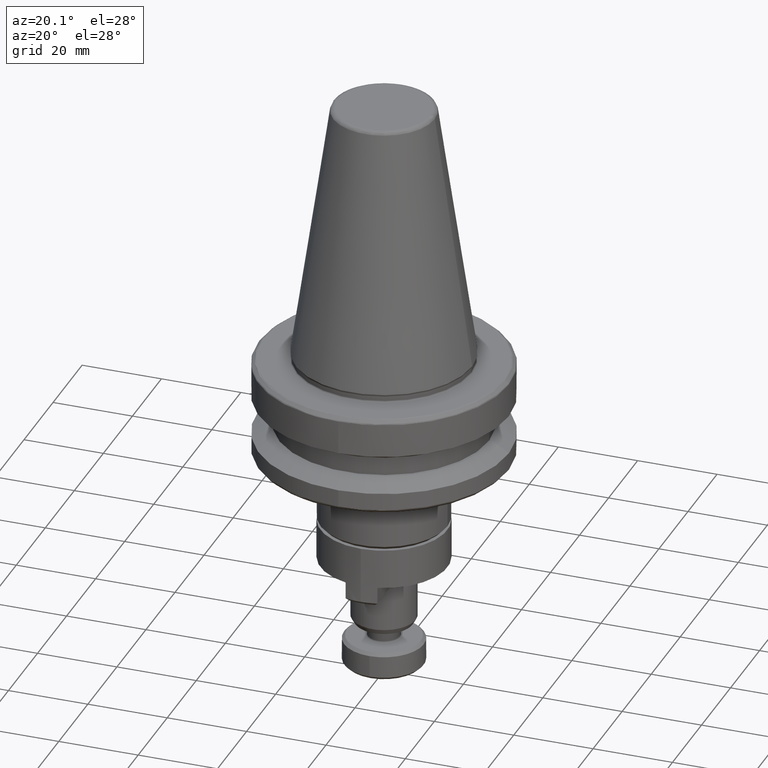
[diagram: clean part render]
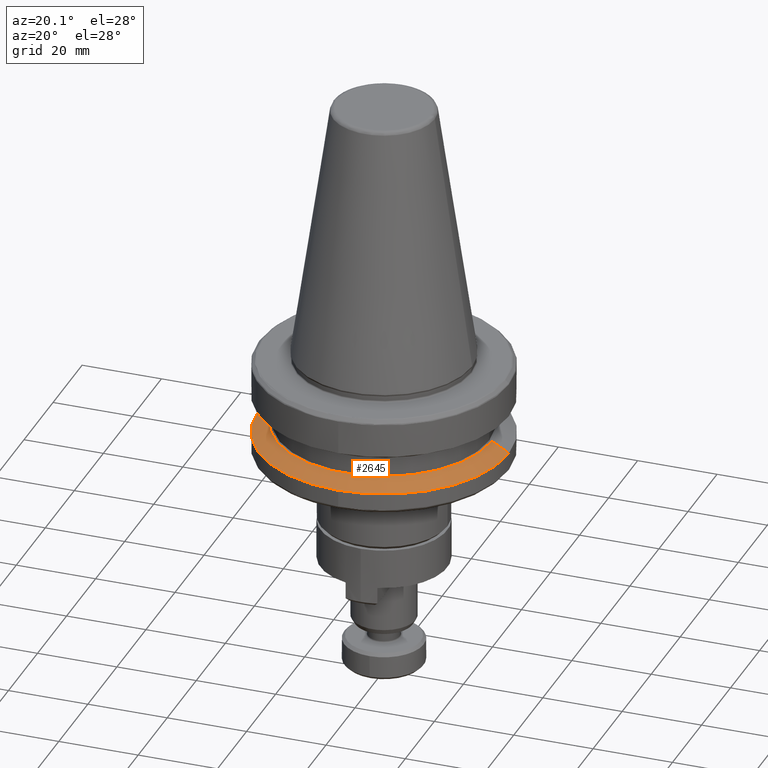
[diagram: same view with one face highlighted and labeled with its STEP entity id]
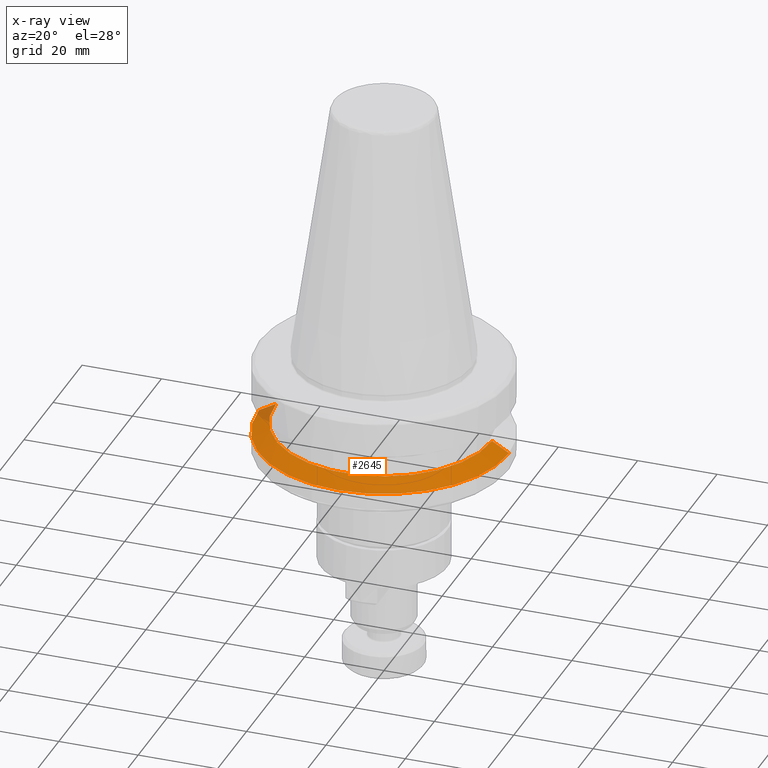
[diagram: x-ray of the same camera — body ghosted, the highlighted face saturated]
A machine part, auxiliary view. The second image highlights one B-rep face of the part: STEP entity #2645.
The next image is the same camera in x-ray: the body ghosted, the highlighted face saturated — about 3% of this face is hidden behind the body in this view.
In plain terms, the highlighted conical surface has half-angle 60 deg.
Its self-contained STEP definition (entity closure, byte-faithful):
#78 = DIRECTION ( 'NONE',  ( -1.000000000000000000, 0.0000000000000000000, 0.0000000000000000000 ) ) ;
#216 = EDGE_CURVE ( 'NONE', #1042, #2691, #819, .T. ) ;
#261 = CARTESIAN_POINT ( 'NONE',  ( -27.21031387298808800, 0.0000000000000000000, -19.09999999999642400 ) ) ;
#328 = EDGE_LOOP ( 'NONE', ( #740, #477, #3780, #1919, #2660 ) ) ;
#427 = AXIS2_PLACEMENT_3D ( 'NONE', #3766, #1918, #78 ) ;
#477 = ORIENTED_EDGE ( 'NONE', *, *, #1892, .T. ) ;
#506 = DIRECTION ( 'NONE',  ( -1.000000000000000000, 0.0000000000000000000, 0.0000000000000000000 ) ) ;
#533 = CARTESIAN_POINT ( 'NONE',  ( 0.0000000000000000000, 0.0000000000000000000, -19.09999999999642400 ) ) ;
#636 = DIRECTION ( 'NONE',  ( -0.0000000000000000000, -0.0000000000000000000, -1.000000000000000000 ) ) ;
#740 = ORIENTED_EDGE ( 'NONE', *, *, #925, .F. ) ;
#819 = LINE ( 'NONE', #261, #3994 ) ;
#856 = DIRECTION ( 'NONE',  ( -0.0000000000000000000, -0.0000000000000000000, -1.000000000000000000 ) ) ;
#914 = CARTESIAN_POINT ( 'NONE',  ( 0.0000000000000000000, 0.0000000000000000000, -21.57665158553746900 ) ) ;
#925 = EDGE_CURVE ( 'NONE', #3565, #3293, #3866, .T. ) ;
#982 = CONICAL_SURFACE ( 'NONE', #3687, 27.21031387298808800, 1.047197525780103600 ) ;
#1027 = AXIS2_PLACEMENT_3D ( 'NONE', #914, #3061, #1211 ) ;
#1042 = VERTEX_POINT ( 'NONE', #3844 ) ;
#1076 = CIRCLE ( 'NONE', #1027, 31.50000000000000000 ) ;
#1140 = CARTESIAN_POINT ( 'NONE',  ( 31.50000000000000000, 3.857637417314162700E-015, -21.57665158553746900 ) ) ;
#1211 = DIRECTION ( 'NONE',  ( -1.000000000000000000, 0.0000000000000000000, 0.0000000000000000000 ) ) ;
#1317 = CARTESIAN_POINT ( 'NONE',  ( 27.21031387298808800, 3.332302378834968100E-015, -19.09999999999642400 ) ) ;
#1617 = DIRECTION ( 'NONE',  ( 0.8660253910761913600, 1.060575223161792600E-016, -0.5000000220113294300 ) ) ;
#1888 = CIRCLE ( 'NONE', #3152, 27.21031387298808800 ) ;
#1892 = EDGE_CURVE ( 'NONE', #3565, #1042, #1888, .T. ) ;
#1918 = DIRECTION ( 'NONE',  ( -0.0000000000000000000, -0.0000000000000000000, -1.000000000000000000 ) ) ;
#1919 = ORIENTED_EDGE ( 'NONE', *, *, #3775, .F. ) ;
#1980 = FACE_OUTER_BOUND ( 'NONE', #328, .T. ) ;
#2036 = CIRCLE ( 'NONE', #427, 31.50000000000000000 ) ;
#2075 = CARTESIAN_POINT ( 'NONE',  ( -31.50000000000000000, 0.0000000000000000000, -21.57665158553746900 ) ) ;
#2393 = DIRECTION ( 'NONE',  ( -0.8660253910761913600, 0.0000000000000000000, -0.5000000220113294300 ) ) ;
#2476 = CARTESIAN_POINT ( 'NONE',  ( 0.0000000000000000000, 0.0000000000000000000, -19.09999999999642400 ) ) ;
#2645 = ADVANCED_FACE ( 'NONE', ( #1980 ), #982, .T. ) ;
#2660 = ORIENTED_EDGE ( 'NONE', *, *, #2953, .F. ) ;
#2691 = VERTEX_POINT ( 'NONE', #2075 ) ;
#2717 = CARTESIAN_POINT ( 'NONE',  ( 27.21031387298808800, 3.594969898074565800E-015, -19.09999999999642400 ) ) ;
#2788 = DIRECTION ( 'NONE',  ( -1.000000000000000000, 0.0000000000000000000, 0.0000000000000000000 ) ) ;
#2952 = VECTOR ( 'NONE', #1617, 999.9999999999998900 ) ;
#2953 = EDGE_CURVE ( 'NONE', #3293, #3597, #2036, .T. ) ;
#3061 = DIRECTION ( 'NONE',  ( -0.0000000000000000000, -0.0000000000000000000, -1.000000000000000000 ) ) ;
#3152 = AXIS2_PLACEMENT_3D ( 'NONE', #2476, #636, #2788 ) ;
#3293 = VERTEX_POINT ( 'NONE', #1140 ) ;
#3565 = VERTEX_POINT ( 'NONE', #2717 ) ;
#3597 = VERTEX_POINT ( 'NONE', #3643 ) ;
#3643 = CARTESIAN_POINT ( 'NONE',  ( 0.0000000000000000000, -31.50000000000000000, -21.57665158553746900 ) ) ;
#3687 = AXIS2_PLACEMENT_3D ( 'NONE', #533, #856, #506 ) ;
#3766 = CARTESIAN_POINT ( 'NONE',  ( 0.0000000000000000000, 0.0000000000000000000, -21.57665158553746900 ) ) ;
#3775 = EDGE_CURVE ( 'NONE', #3597, #2691, #1076, .T. ) ;
#3780 = ORIENTED_EDGE ( 'NONE', *, *, #216, .T. ) ;
#3844 = CARTESIAN_POINT ( 'NONE',  ( -27.21031387298808800, 0.0000000000000000000, -19.09999999999642400 ) ) ;
#3866 = LINE ( 'NONE', #1317, #2952 ) ;
#3994 = VECTOR ( 'NONE', #2393, 999.9999999999998900 ) ;